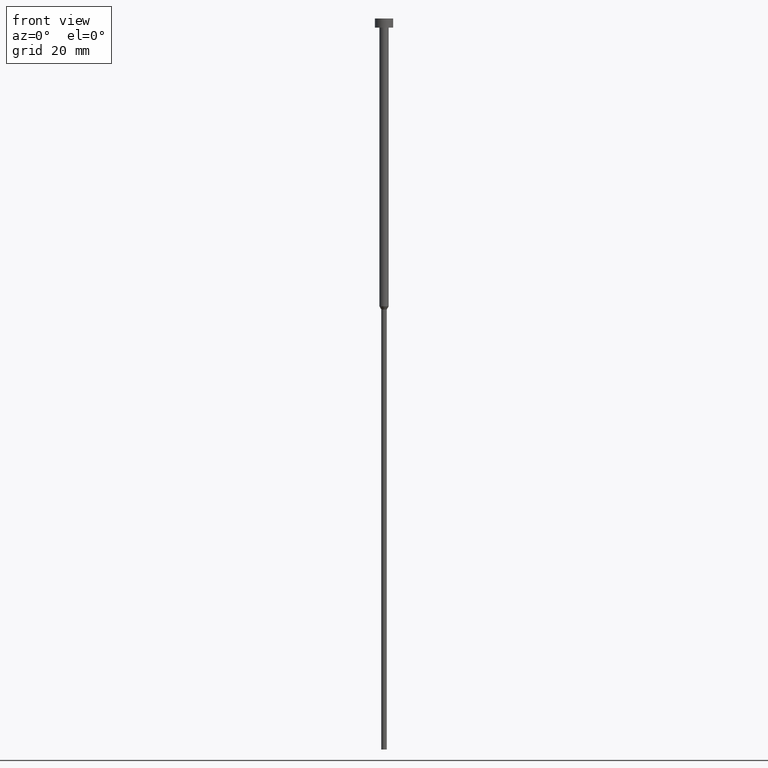
[diagram: clean part render]
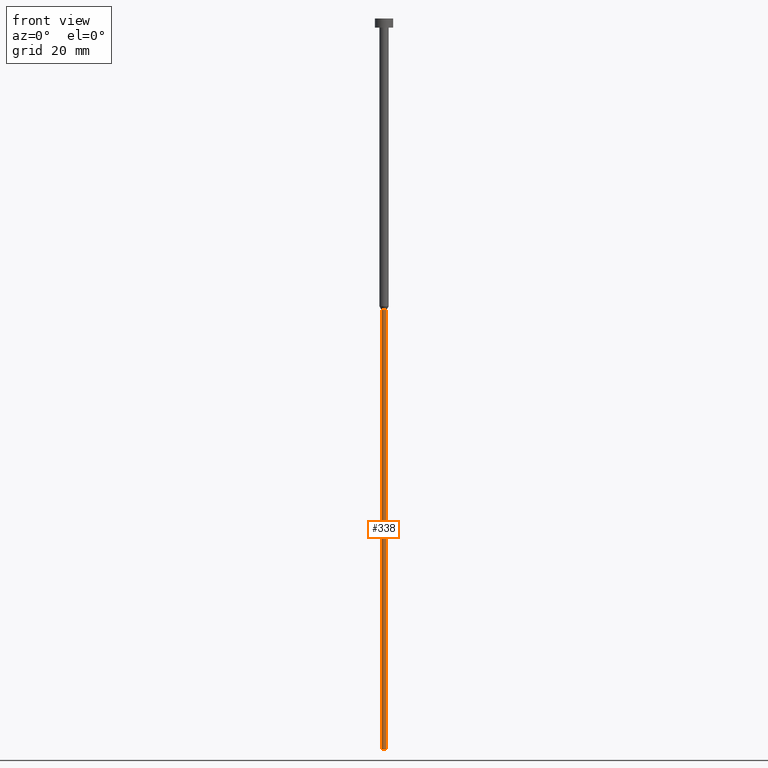
[diagram: same view with one face highlighted and labeled with its STEP entity id]
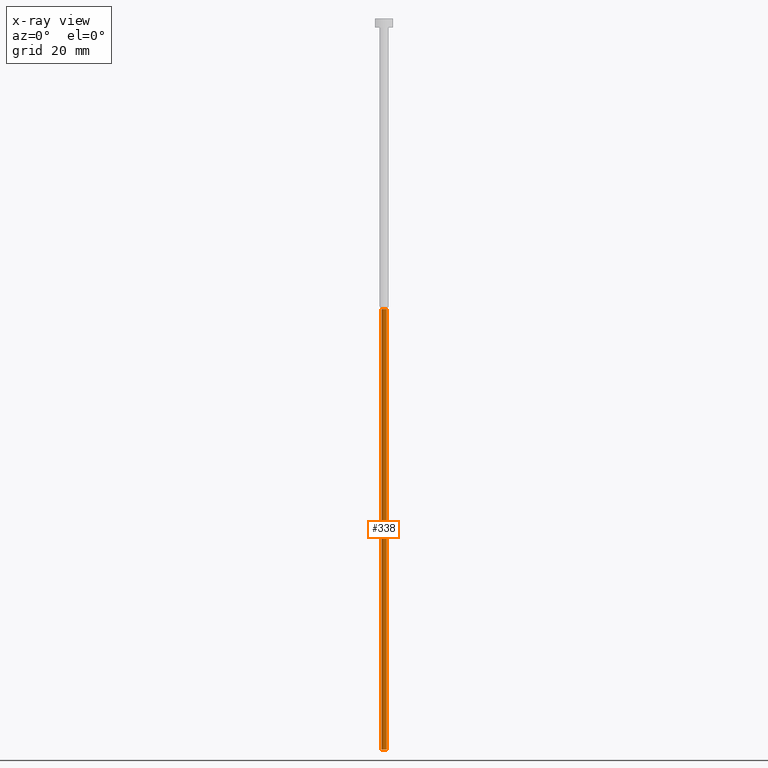
[diagram: x-ray of the same camera — body ghosted, the highlighted face saturated]
A machine part, front view. The second image highlights one B-rep face of the part: STEP entity #338.
The next image is the same camera in x-ray: the body ghosted, the highlighted face saturated — about 0% of this face is hidden behind the body in this view.
In plain terms, the highlighted cylindrical surface (edge-blend (fillet) strip) has radius 0.6 mm, axis along (-0, -0, 1).
Its self-contained STEP definition (entity closure, byte-faithful):
#4 = ORIENTED_EDGE ( 'NONE', *, *, #61, .T. ) ;
#8 = AXIS2_PLACEMENT_3D ( 'NONE', #274, #79, #21 ) ;
#12 = DIRECTION ( 'NONE',  ( -0.000000000000000000, -0.000000000000000000, 1.000000000000000000 ) ) ;
#13 = LINE ( 'NONE', #41, #289 ) ;
#15 = CARTESIAN_POINT ( 'NONE',  ( 0.000000000000000000, 0.000000000000000000, -160.0000000000000000 ) ) ;
#21 = DIRECTION ( 'NONE',  ( 1.000000000000000000, 0.000000000000000000, 0.000000000000000000 ) ) ;
#35 = VERTEX_POINT ( 'NONE', #67 ) ;
#36 = EDGE_CURVE ( 'NONE', #282, #263, #181, .T. ) ;
#40 = VECTOR ( 'NONE', #12, 1000.000000000000000 ) ;
#41 = CARTESIAN_POINT ( 'NONE',  ( -0.5999999999999998668, 7.347880794884117764E-17, 0.000000000000000000 ) ) ;
#48 = FACE_OUTER_BOUND ( 'NONE', #237, .T. ) ;
#56 = CIRCLE ( 'NONE', #74, 0.5999999999999998668 ) ;
#61 = EDGE_CURVE ( 'NONE', #35, #282, #257, .T. ) ;
#67 = CARTESIAN_POINT ( 'NONE',  ( -0.5999999999999998668, 7.347880794884117764E-17, -160.0000000000000000 ) ) ;
#71 = DIRECTION ( 'NONE',  ( -0.000000000000000000, -0.000000000000000000, 1.000000000000000000 ) ) ;
#72 = DIRECTION ( 'NONE',  ( 1.000000000000000000, 0.000000000000000000, 0.000000000000000000 ) ) ;
#74 = AXIS2_PLACEMENT_3D ( 'NONE', #184, #156, #72 ) ;
#76 = CYLINDRICAL_SURFACE ( 'NONE', #8, 0.5999999999999998668 ) ;
#79 = DIRECTION ( 'NONE',  ( -0.000000000000000000, -0.000000000000000000, 1.000000000000000000 ) ) ;
#82 = VERTEX_POINT ( 'NONE', #321 ) ;
#85 = EDGE_CURVE ( 'NONE', #35, #82, #13, .T. ) ;
#108 = EDGE_CURVE ( 'NONE', #82, #263, #56, .T. ) ;
#109 = CARTESIAN_POINT ( 'NONE',  ( 0.5999999999999998668, 0.000000000000000000, -160.0000000000000000 ) ) ;
#122 = ORIENTED_EDGE ( 'NONE', *, *, #85, .F. ) ;
#154 = CARTESIAN_POINT ( 'NONE',  ( 0.5999999999999998668, 0.000000000000000000, 0.000000000000000000 ) ) ;
#156 = DIRECTION ( 'NONE',  ( -0.000000000000000000, -0.000000000000000000, 1.000000000000000000 ) ) ;
#165 = CARTESIAN_POINT ( 'NONE',  ( 0.5999999999999998668, 0.000000000000000000, -63.69282032302756136 ) ) ;
#181 = LINE ( 'NONE', #154, #40 ) ;
#184 = CARTESIAN_POINT ( 'NONE',  ( 0.000000000000000000, 0.000000000000000000, -63.69282032302756136 ) ) ;
#216 = DIRECTION ( 'NONE',  ( -0.000000000000000000, -0.000000000000000000, 1.000000000000000000 ) ) ;
#237 = EDGE_LOOP ( 'NONE', ( #122, #4, #258, #332 ) ) ;
#257 = CIRCLE ( 'NONE', #311, 0.5999999999999998668 ) ;
#258 = ORIENTED_EDGE ( 'NONE', *, *, #36, .T. ) ;
#263 = VERTEX_POINT ( 'NONE', #165 ) ;
#274 = CARTESIAN_POINT ( 'NONE',  ( 0.000000000000000000, 0.000000000000000000, 0.000000000000000000 ) ) ;
#282 = VERTEX_POINT ( 'NONE', #109 ) ;
#288 = DIRECTION ( 'NONE',  ( 1.000000000000000000, 0.000000000000000000, 0.000000000000000000 ) ) ;
#289 = VECTOR ( 'NONE', #71, 1000.000000000000000 ) ;
#311 = AXIS2_PLACEMENT_3D ( 'NONE', #15, #216, #288 ) ;
#321 = CARTESIAN_POINT ( 'NONE',  ( -0.5999999999999998668, 7.347880794884117764E-17, -63.69282032302756136 ) ) ;
#332 = ORIENTED_EDGE ( 'NONE', *, *, #108, .F. ) ;
#338 = ADVANCED_FACE ( 'NONE', ( #48 ), #76, .T. ) ;